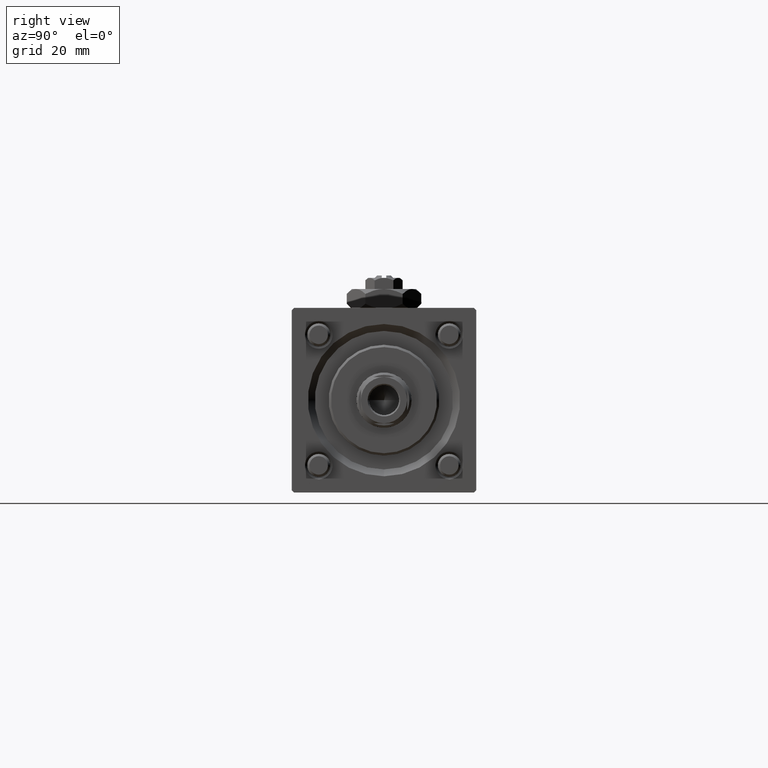
[diagram: clean part render]
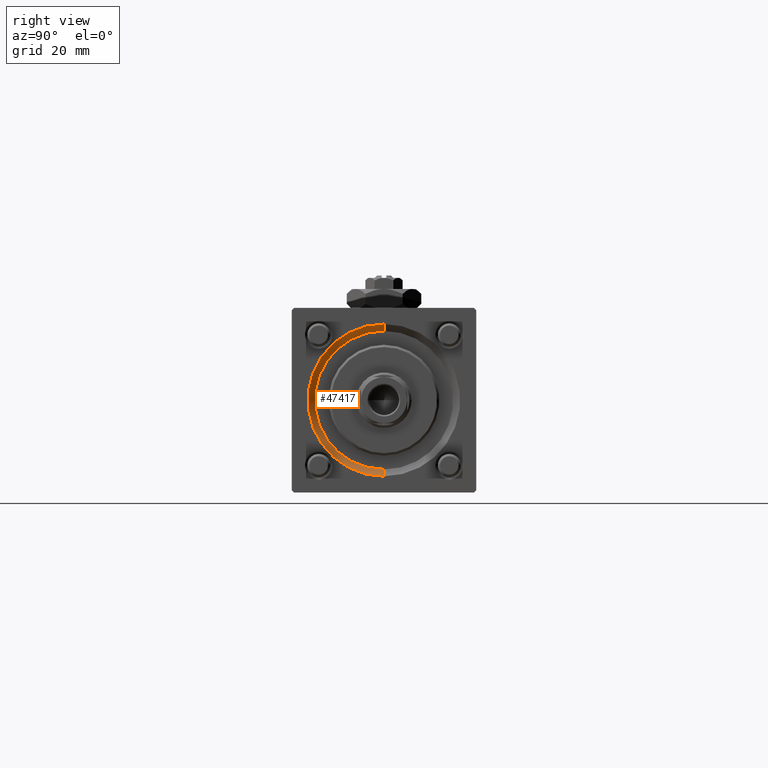
[diagram: same view with one face highlighted and labeled with its STEP entity id]
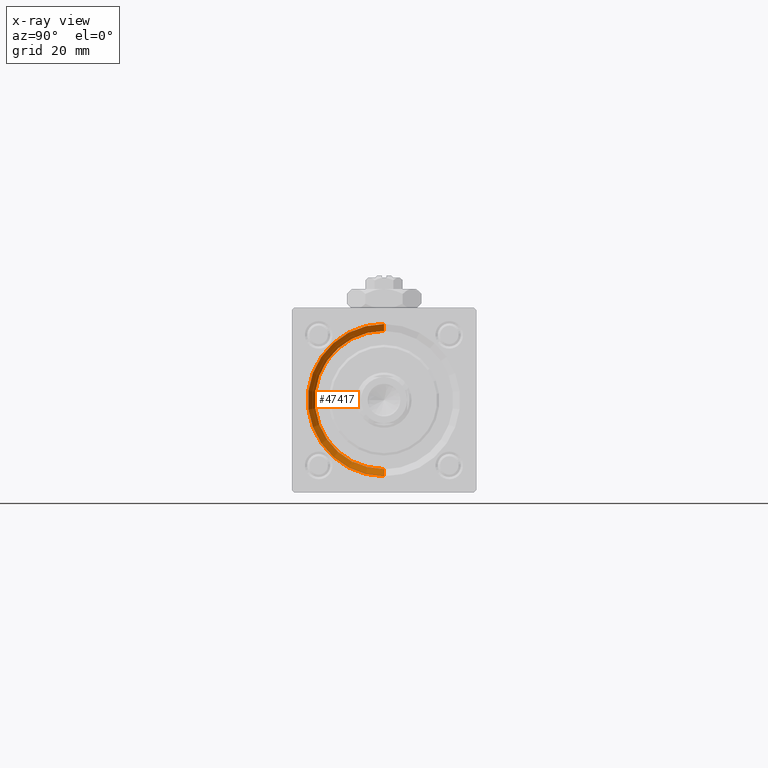
[diagram: x-ray of the same camera — body ghosted, the highlighted face saturated]
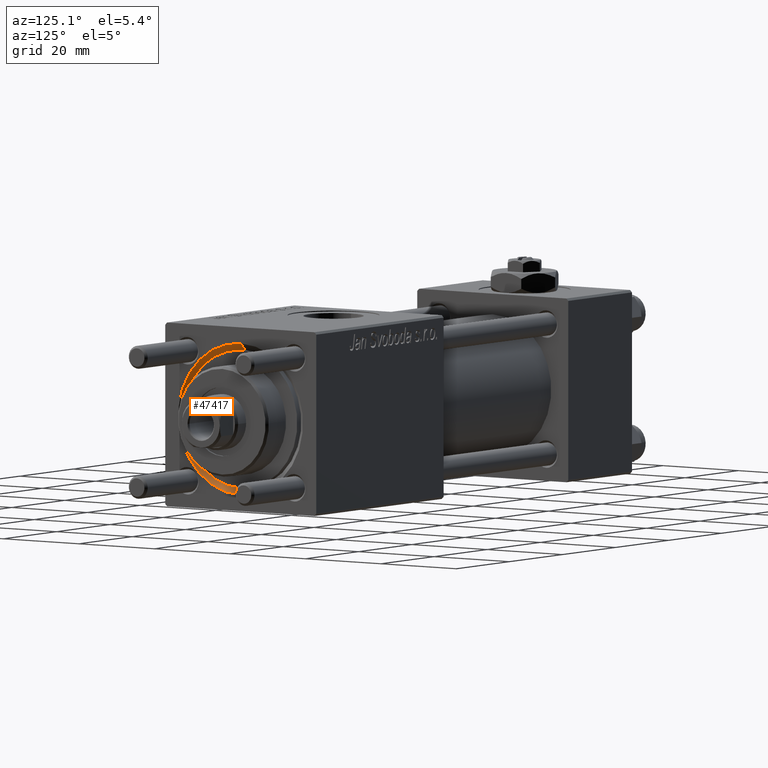
[diagram: same view with one face highlighted and labeled with its STEP entity id]
A machine part, right view. The second image highlights one B-rep face of the part: STEP entity #47417.
The next image is the same camera in x-ray: the body ghosted, the highlighted face saturated — about 0% of this face is hidden behind the body in this view.
A second angle (auxiliary view) of the same face is appended — the face is thin or edge-on in the first view.
In plain terms, the highlighted conical surface has half-angle 45 deg.
Its self-contained STEP definition (entity closure, byte-faithful):
#71 = DIRECTION ( 'NONE',  ( 1.000000000000000000, 0.000000000000000000, 0.000000000000000000 ) ) ;
#2598 = VERTEX_POINT ( 'NONE', #20351 ) ;
#4231 = DIRECTION ( 'NONE',  ( 0.000000000000000000, 0.000000000000000000, 1.000000000000000000 ) ) ;
#4381 = CARTESIAN_POINT ( 'NONE',  ( 117.5000000000000000, 0.000000000000000000, 0.000000000000000000 ) ) ;
#5095 = CARTESIAN_POINT ( 'NONE',  ( 119.0000000000000142, 0.000000000000000000, 0.000000000000000000 ) ) ;
#6997 = CARTESIAN_POINT ( 'NONE',  ( 117.5000000000000000, 1.836970198721029589E-15, 15.00000000000000000 ) ) ;
#10733 = VECTOR ( 'NONE', #39216, 1000.000000000000114 ) ;
#11397 = DIRECTION ( 'NONE',  ( 0.7071067811865474617, 0.000000000000000000, -0.7071067811865474617 ) ) ;
#16791 = DIRECTION ( 'NONE',  ( 0.000000000000000000, 0.000000000000000000, -1.000000000000000000 ) ) ;
#17820 = VERTEX_POINT ( 'NONE', #21144 ) ;
#18849 = AXIS2_PLACEMENT_3D ( 'NONE', #5095, #36732, #4231 ) ;
#18858 = ORIENTED_EDGE ( 'NONE', *, *, #55375, .F. ) ;
#18875 = CONICAL_SURFACE ( 'NONE', #26428, 15.00000000000000000, 0.7853981633974482790 ) ;
#18995 = EDGE_CURVE ( 'NONE', #38514, #2598, #35861, .T. ) ;
#20312 = EDGE_LOOP ( 'NONE', ( #38817, #32890, #39526, #18858 ) ) ;
#20351 = CARTESIAN_POINT ( 'NONE',  ( 119.0000000000000142, 2.020667218593134678E-15, 16.50000000000001421 ) ) ;
#21144 = CARTESIAN_POINT ( 'NONE',  ( 117.5000000000000000, 0.000000000000000000, -15.00000000000000000 ) ) ;
#22823 = CARTESIAN_POINT ( 'NONE',  ( 117.5000000000000000, 0.000000000000000000, 0.000000000000000000 ) ) ;
#23569 = CARTESIAN_POINT ( 'NONE',  ( 117.5000000000000000, 1.836970198721029589E-15, 15.00000000000000000 ) ) ;
#26428 = AXIS2_PLACEMENT_3D ( 'NONE', #4381, #57301, #16791 ) ;
#32805 = CARTESIAN_POINT ( 'NONE',  ( 119.0000000000000142, 0.000000000000000000, -16.50000000000001421 ) ) ;
#32890 = ORIENTED_EDGE ( 'NONE', *, *, #35121, .T. ) ;
#33866 = LINE ( 'NONE', #51914, #54078 ) ;
#33936 = AXIS2_PLACEMENT_3D ( 'NONE', #22823, #71, #41739 ) ;
#34555 = FACE_OUTER_BOUND ( 'NONE', #20312, .T. ) ;
#35121 = EDGE_CURVE ( 'NONE', #47597, #2598, #56650, .T. ) ;
#35861 = CIRCLE ( 'NONE', #18849, 16.50000000000001421 ) ;
#36732 = DIRECTION ( 'NONE',  ( -1.000000000000000000, -0.000000000000000000, -0.000000000000000000 ) ) ;
#38514 = VERTEX_POINT ( 'NONE', #32805 ) ;
#38817 = ORIENTED_EDGE ( 'NONE', *, *, #44983, .F. ) ;
#39216 = DIRECTION ( 'NONE',  ( 0.7071067811865474617, 8.659560562354932858E-17, 0.7071067811865474617 ) ) ;
#39526 = ORIENTED_EDGE ( 'NONE', *, *, #18995, .F. ) ;
#41739 = DIRECTION ( 'NONE',  ( 0.000000000000000000, 0.000000000000000000, 1.000000000000000000 ) ) ;
#44983 = EDGE_CURVE ( 'NONE', #47597, #17820, #55671, .T. ) ;
#47417 = ADVANCED_FACE ( 'NONE', ( #34555 ), #18875, .F. ) ;
#47597 = VERTEX_POINT ( 'NONE', #23569 ) ;
#51914 = CARTESIAN_POINT ( 'NONE',  ( 117.5000000000000000, 0.000000000000000000, -15.00000000000000000 ) ) ;
#54078 = VECTOR ( 'NONE', #11397, 1000.000000000000114 ) ;
#55375 = EDGE_CURVE ( 'NONE', #17820, #38514, #33866, .T. ) ;
#55671 = CIRCLE ( 'NONE', #33936, 15.00000000000000000 ) ;
#56650 = LINE ( 'NONE', #6997, #10733 ) ;
#57301 = DIRECTION ( 'NONE',  ( 1.000000000000000000, 0.000000000000000000, 0.000000000000000000 ) ) ;